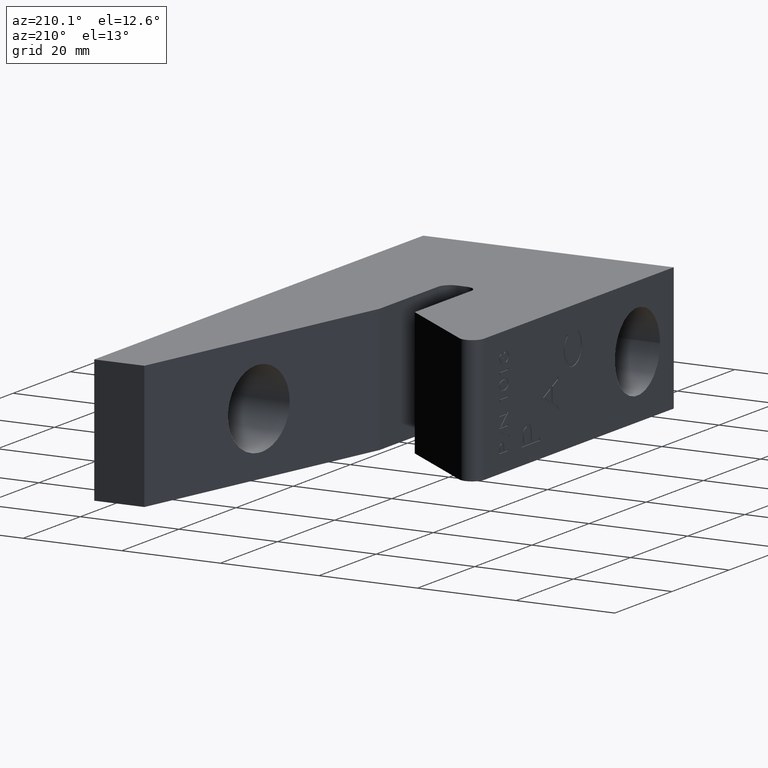
[diagram: clean part render]
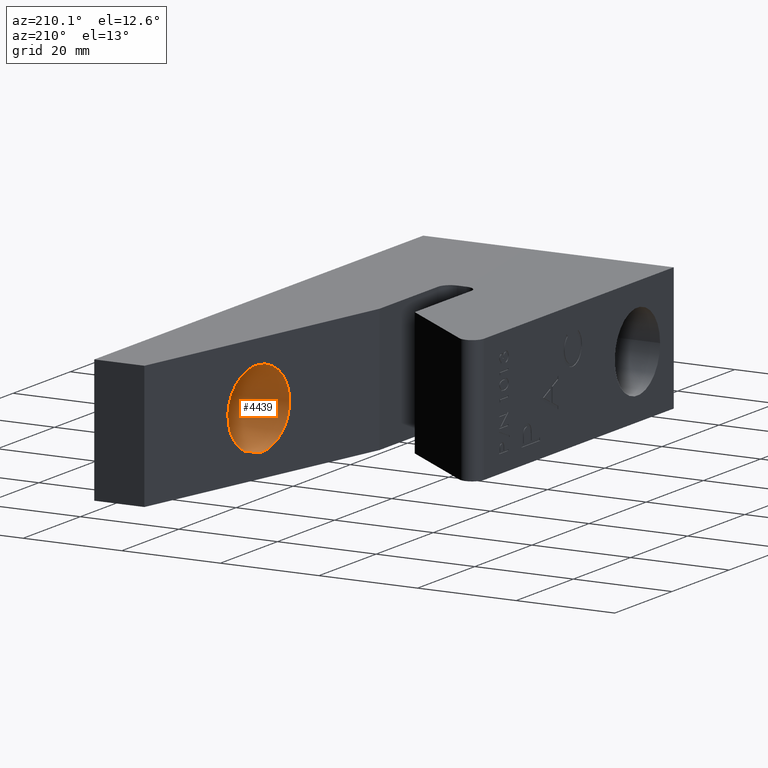
[diagram: same view with one face highlighted and labeled with its STEP entity id]
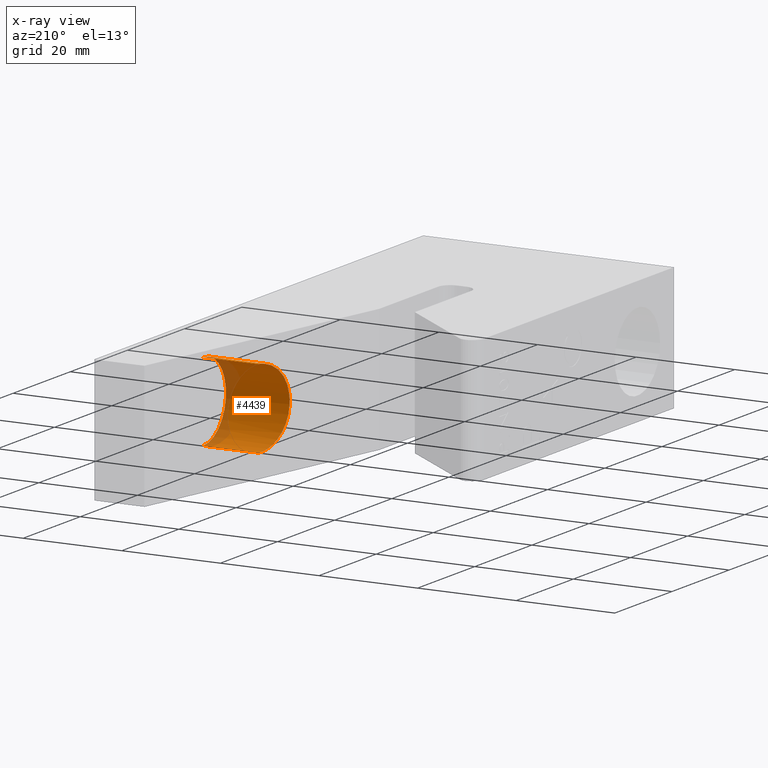
[diagram: x-ray of the same camera — body ghosted, the highlighted face saturated]
A machine part, auxiliary view. The second image highlights one B-rep face of the part: STEP entity #4439.
The next image is the same camera in x-ray: the body ghosted, the highlighted face saturated — about 15% of this face is hidden behind the body in this view.
In plain terms, the highlighted cylindrical surface (partial cylindrical patch) has radius 7.9375 mm, axis along (1, -0, -0).
Its self-contained STEP definition (entity closure, byte-faithful):
#286 = EDGE_CURVE ( 'NONE', #5692, #5806, #6823, .T. ) ;
#287 = EDGE_CURVE ( 'NONE', #5806, #6067, #6827, .T. ) ;
#291 = EDGE_CURVE ( 'NONE', #5847, #6067, #6825, .T. ) ;
#294 = EDGE_CURVE ( 'NONE', #5692, #5847, #6807, .T. ) ;
#1557 = ORIENTED_EDGE ( 'NONE', *, *, #294, .F. ) ;
#1559 = ORIENTED_EDGE ( 'NONE', *, *, #287, .T. ) ;
#2358 = AXIS2_PLACEMENT_3D ( 'NONE', #3274, #3275, #3277 ) ;
#3274 = CARTESIAN_POINT ( 'NONE',  ( -2.000000000000000400, 3.375000000000000000, 0.0000000000000000000 ) ) ;
#3275 = DIRECTION ( 'NONE',  ( 1.000000000000000000, -0.0000000000000000000, -0.0000000000000000000 ) ) ;
#3277 = DIRECTION ( 'NONE',  ( 0.0000000000000000000, 0.0000000000000000000, -1.000000000000000000 ) ) ;
#3757 = AXIS2_PLACEMENT_3D ( 'NONE', #6007, #6006, #6208 ) ;
#4439 = ADVANCED_FACE ( 'NONE', ( #4588 ), #4594, .F. ) ;
#4588 = FACE_OUTER_BOUND ( 'NONE', #6263, .T. ) ;
#4594 = CYLINDRICAL_SURFACE ( 'NONE', #2358, 0.3125000000000000600 ) ;
#5028 = ORIENTED_EDGE ( 'NONE', *, *, #291, .F. ) ;
#5272 = CARTESIAN_POINT ( 'NONE',  ( -0.6434210526315790000, 3.375000000000000000, -0.3125000000000000600 ) ) ;
#5511 = CARTESIAN_POINT ( 'NONE',  ( -2.000000000000000400, 3.375000000000000000, 0.3125000000000000600 ) ) ;
#5580 = DIRECTION ( 'NONE',  ( 1.000000000000000000, -0.0000000000000000000, -0.0000000000000000000 ) ) ;
#5652 = CARTESIAN_POINT ( 'NONE',  ( -0.6434210526315790000, 3.375000000000000000, 0.3125000000000000600 ) ) ;
#5692 = VERTEX_POINT ( 'NONE', #8295 ) ;
#5806 = VERTEX_POINT ( 'NONE', #8333 ) ;
#5847 = VERTEX_POINT ( 'NONE', #8363 ) ;
#5989 = CARTESIAN_POINT ( 'NONE',  ( -0.7750000000000000200, 2.750000000000000000, 0.3125000000000000600 ) ) ;
#5997 = CARTESIAN_POINT ( 'NONE',  ( -0.7750000000000000200, 2.750000000000000000, -0.3124999999999998900 ) ) ;
#6006 = DIRECTION ( 'NONE',  ( 1.000000000000000000, 0.0000000000000000000, 0.0000000000000000000 ) ) ;
#6007 = CARTESIAN_POINT ( 'NONE',  ( -0.2000000000000000100, 3.375000000000000000, 0.0000000000000000000 ) ) ;
#6008 = DIRECTION ( 'NONE',  ( 1.000000000000000000, -0.0000000000000000000, -0.0000000000000000000 ) ) ;
#6022 = CARTESIAN_POINT ( 'NONE',  ( -2.000000000000000400, 3.375000000000000000, -0.3125000000000000600 ) ) ;
#6067 = VERTEX_POINT ( 'NONE', #8399 ) ;
#6208 = DIRECTION ( 'NONE',  ( 0.0000000000000000000, 0.0000000000000000000, -1.000000000000000000 ) ) ;
#6263 = EDGE_LOOP ( 'NONE', ( #1557, #6427, #1559, #5028 ) ) ;
#6427 = ORIENTED_EDGE ( 'NONE', *, *, #286, .T. ) ;
#6807 =( BOUNDED_CURVE ( )  B_SPLINE_CURVE ( 3, ( #5652, #5989, #5997, #5272 ),
 .UNSPECIFIED., .F., .T. ) 
 B_SPLINE_CURVE_WITH_KNOTS ( ( 4, 4 ),
 ( 1.570796326794896600, 4.712388980384689700 ),
 .UNSPECIFIED. ) 
 CURVE ( )  GEOMETRIC_REPRESENTATION_ITEM ( )  RATIONAL_B_SPLINE_CURVE ( ( 1.000000000000000000, 0.3333333333333333700, 0.3333333333333333700, 1.000000000000000000 ) ) 
 REPRESENTATION_ITEM ( '' )  );
#6823 = LINE ( 'NONE', #5511, #6824 ) ;
#6824 = VECTOR ( 'NONE', #6008, 39.37007874015748100 ) ;
#6825 = LINE ( 'NONE', #6022, #6826 ) ;
#6826 = VECTOR ( 'NONE', #5580, 39.37007874015748100 ) ;
#6827 = CIRCLE ( 'NONE', #3757, 0.3125000000000000600 ) ;
#8295 = CARTESIAN_POINT ( 'NONE',  ( -0.6434210526315790000, 3.375000000000000000, 0.3125000000000000600 ) ) ;
#8333 = CARTESIAN_POINT ( 'NONE',  ( -0.2000000000000000100, 3.375000000000000000, 0.3125000000000000600 ) ) ;
#8363 = CARTESIAN_POINT ( 'NONE',  ( -0.6434210526315790000, 3.375000000000000000, -0.3125000000000000600 ) ) ;
#8399 = CARTESIAN_POINT ( 'NONE',  ( -0.2000000000000000100, 3.375000000000000000, -0.3125000000000000600 ) ) ;